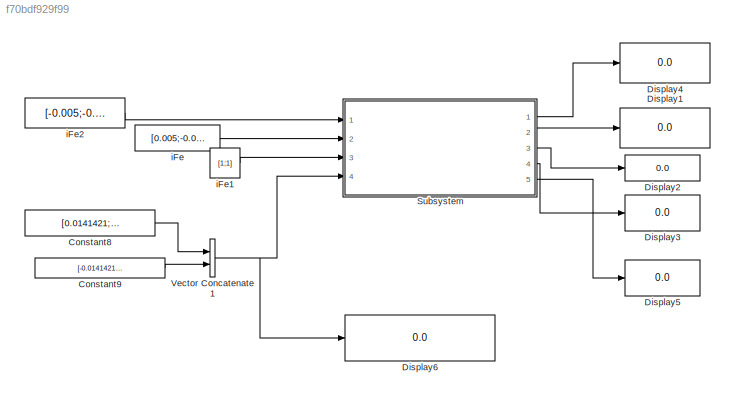
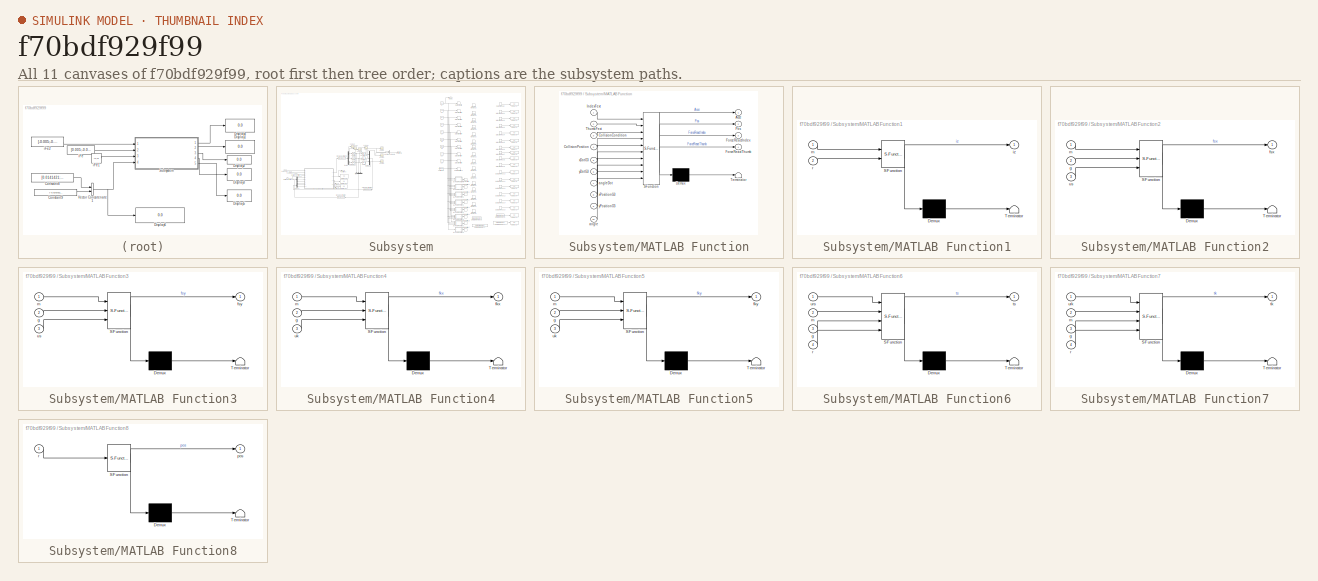
[diagram: thumbnail index - all 11 canvases of the model, root first then tree order]
MODEL slx_f70bdf929f99
KIND model
CONFIG AbsTol = auto
CONFIG FixedStep = auto
CONFIG MaxStep = auto
CONFIG MinStep = auto
CONFIG RelTol = 1e-3
CONFIG SampleTimeConstraint = Unconstrained
CONFIG Solver = ode45
CONFIG SolverMode = Auto
CONFIG SolverName = ode45
CONFIG StartTime = 0.0
CONFIG StopTime = 2
BLOCK [Constant] Constant8
  Value = [0.0141421;0.0141421]
BLOCK [Constant] Constant9
  Value = [-0.0141421;0.0141421]
BLOCK [Display] Display1
  Decimation = 1
  Ports = [1]
BLOCK [Display] Display2
  Decimation = 1
  Ports = [1]
BLOCK [Display] Display3
  Decimation = 1
  Ports = [1]
BLOCK [Display] Display4
  Decimation = 1
  Ports = [1]
BLOCK [Display] Display5
  Decimation = 1
  Ports = [1]
BLOCK [Display] Display6
  Decimation = 1
  Ports = [1]
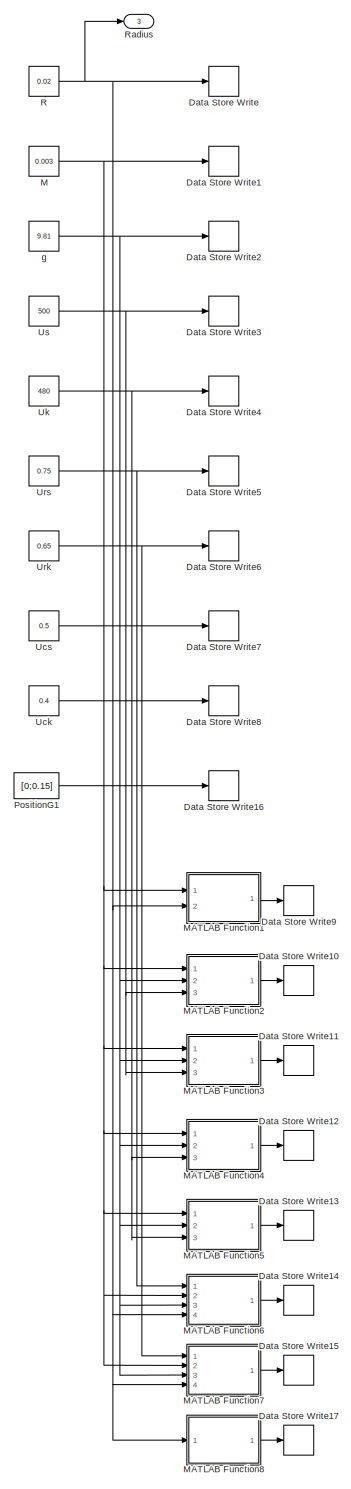
[diagram: Subsystem - part 1/3, right side, full height]
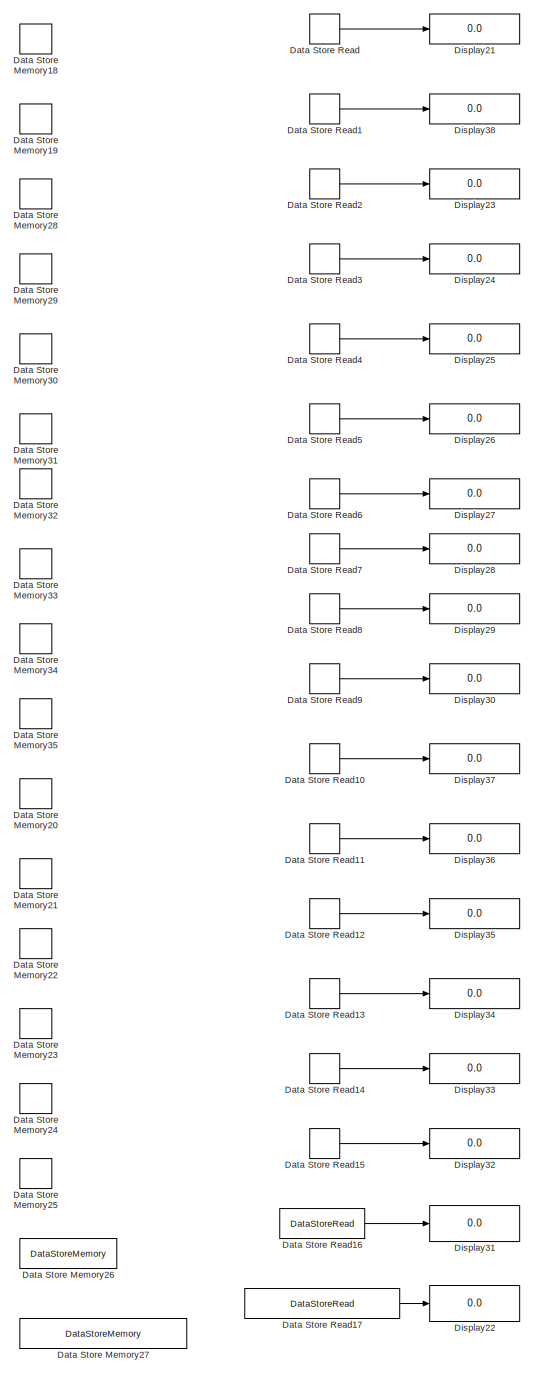
[diagram: Subsystem - part 2/3, right side, full height]
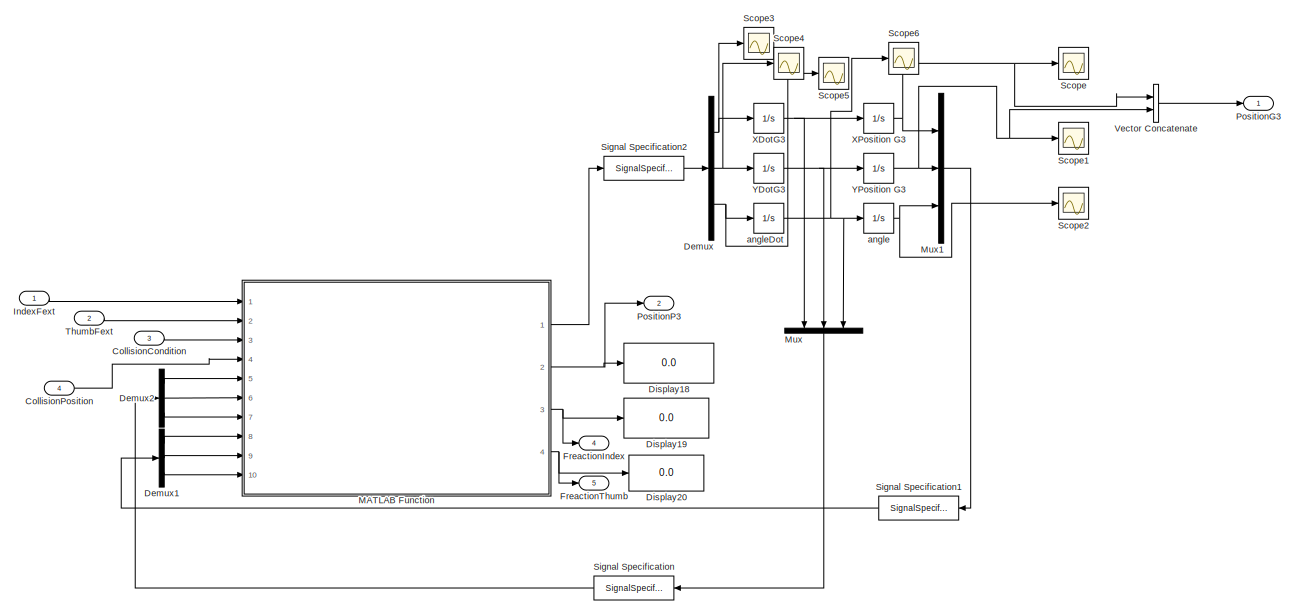
[diagram: Subsystem - part 3/3, middle left region]
BLOCK [SubSystem] Subsystem
  Ports = [4, 5]
  RequestExecContextInheritance = off
BLOCK [Inport] Subsystem/CollisionCondition
  IconDisplay = Port number
  Port = 3
BLOCK [Inport] Subsystem/CollisionPosition
  IconDisplay = Port number
  Port = 4
BLOCK [DataStoreMemory] Subsystem/Data Store Memory18
  DataStoreName = R
  OutDataTypeStr = double
  ReadBeforeWriteMsg = warning
  SignalType = real
  WriteAfterReadMsg = warning
  WriteAfterWriteMsg = warning
BLOCK [DataStoreMemory] Subsystem/Data Store Memory19
  DataStoreName = M
  InitialValue = 0.003
  OutDataTypeStr = double
  ReadBeforeWriteMsg = warning
  SignalType = real
  WriteAfterReadMsg = warning
  WriteAfterWriteMsg = warning
BLOCK [DataStoreMemory] Subsystem/Data Store Memory20
  DataStoreName = F_s_x
  OutDataTypeStr = double
  ReadBeforeWriteMsg = warning
  SignalType = real
  WriteAfterReadMsg = warning
  WriteAfterWriteMsg = warning
BLOCK [DataStoreMemory] Subsystem/Data Store Memory21
  DataStoreName = F_s_y
  OutDataTypeStr = double
  ReadBeforeWriteMsg = warning
  SignalType = real
  WriteAfterReadMsg = warning
  WriteAfterWriteMsg = warning
BLOCK [DataStoreMemory] Subsystem/Data Store Memory22
  DataStoreName = F_k_x
  OutDataTypeStr = double
  ReadBeforeWriteMsg = warning
  SignalType = real
  WriteAfterReadMsg = warning
  WriteAfterWriteMsg = warning
BLOCK [DataStoreMemory] Subsystem/Data Store Memory23
  DataStoreName = F_k_y
  OutDataTypeStr = double
  ReadBeforeWriteMsg = warning
  SignalType = real
  WriteAfterReadMsg = warning
  WriteAfterWriteMsg = warning
BLOCK [DataStoreMemory] Subsystem/Data Store Memory24
  DataStoreName = T_s
  OutDataTypeStr = double
  ReadBeforeWriteMsg = warning
  SignalType = real
  WriteAfterReadMsg = warning
  WriteAfterWriteMsg = warning
BLOCK [DataStoreMemory] Subsystem/Data Store Memory25
  DataStoreName = T_k
  OutDataTypeStr = double
  ReadBeforeWriteMsg = warning
  SignalType = real
  WriteAfterReadMsg = warning
  WriteAfterWriteMsg = warning
BLOCK [DataStoreMemory] Subsystem/Data Store Memory26
  DataStoreName = Position_o_G3
  InitialValue = [0;0]
  OutDataTypeStr = double
  ReadBeforeWriteMsg = warning
  SignalType = real
  WriteAfterReadMsg = warning
  WriteAfterWriteMsg = warning
BLOCK [DataStoreMemory] Subsystem/Data Store Memory27
  DataStoreName = Position_G3_P3_frame_cylinder
  InitialValue = [0;0]
  OutDataTypeStr = double
  ReadBeforeWriteMsg = warning
  SignalType = real
  WriteAfterReadMsg = warning
  WriteAfterWriteMsg = warning
BLOCK [DataStoreMemory] Subsystem/Data Store Memory28
  DataStoreName = g
  InitialValue = 9.81
  OutDataTypeStr = double
  ReadBeforeWriteMsg = warning
  SignalType = real
  WriteAfterReadMsg = warning
  WriteAfterWriteMsg = warning
BLOCK [DataStoreMemory] Subsystem/Data Store Memory29
  DataStoreName = Us
  InitialValue = 0.5
  OutDataTypeStr = double
  ReadBeforeWriteMsg = warning
  SignalType = real
  WriteAfterReadMsg = warning
  WriteAfterWriteMsg = warning
BLOCK [DataStoreMemory] Subsystem/Data Store Memory30
  DataStoreName = Uk
  InitialValue = 0.48
  OutDataTypeStr = double
  ReadBeforeWriteMsg = warning
  SignalType = real
  WriteAfterReadMsg = warning
  WriteAfterWriteMsg = warning
BLOCK [DataStoreMemory] Subsystem/Data Store Memory31
  DataStoreName = Urs
  InitialValue = 0.5
  OutDataTypeStr = double
  ReadBeforeWriteMsg = warning
  SignalType = real
  WriteAfterReadMsg = warning
  WriteAfterWriteMsg = warning
BLOCK [DataStoreMemory] Subsystem/Data Store Memory32
  DataStoreName = Urk
  InitialValue = 0.48
  OutDataTypeStr = double
  ReadBeforeWriteMsg = warning
  SignalType = real
  WriteAfterReadMsg = warning
  WriteAfterWriteMsg = warning
BLOCK [DataStoreMemory] Subsystem/Data Store Memory33
  DataStoreName = Ucs
  InitialValue = 0.5
  OutDataTypeStr = double
  ReadBeforeWriteMsg = warning
  SignalType = real
  WriteAfterReadMsg = warning
  WriteAfterWriteMsg = warning
BLOCK [DataStoreMemory] Subsystem/Data Store Memory34
  DataStoreName = Uck
  InitialValue = 0.4
  OutDataTypeStr = double
  ReadBeforeWriteMsg = warning
  SignalType = real
  WriteAfterReadMsg = warning
  WriteAfterWriteMsg = warning
BLOCK [DataStoreMemory] Subsystem/Data Store Memory35
  DataStoreName = Iz
  OutDataTypeStr = double
  ReadBeforeWriteMsg = warning
  SignalType = real
  WriteAfterReadMsg = warning
  WriteAfterWriteMsg = warning
BLOCK [DataStoreRead] Subsystem/Data Store Read
  DataStoreName = R
  Ports = [0, 1]
BLOCK [DataStoreRead] Subsystem/Data Store Read1
  DataStoreName = M
  Ports = [0, 1]
BLOCK [DataStoreRead] Subsystem/Data Store Read10
  DataStoreName = F_s_x
  Ports = [0, 1]
BLOCK [DataStoreRead] Subsystem/Data Store Read11
  DataStoreName = F_s_y
  Ports = [0, 1]
BLOCK [DataStoreRead] Subsystem/Data Store Read12
  DataStoreName = F_k_x
  Ports = [0, 1]
BLOCK [DataStoreRead] Subsystem/Data Store Read13
  DataStoreName = F_k_y
  Ports = [0, 1]
BLOCK [DataStoreRead] Subsystem/Data Store Read14
  DataStoreName = T_s
  Ports = [0, 1]
BLOCK [DataStoreRead] Subsystem/Data Store Read15
  DataStoreName = T_k
  Ports = [0, 1]
BLOCK [DataStoreRead] Subsystem/Data Store Read16
  DataStoreName = Position_o_G3
  Ports = [0, 1]
BLOCK [DataStoreRead] Subsystem/Data Store Read17
  DataStoreName = Position_G3_P3_frame_cylinder
  Ports = [0, 1]
BLOCK [DataStoreRead] Subsystem/Data Store Read2
  DataStoreName = g
  Ports = [0, 1]
BLOCK [DataStoreRead] Subsystem/Data Store Read3
  DataStoreName = Us
  Ports = [0, 1]
BLOCK [DataStoreRead] Subsystem/Data Store Read4
  DataStoreName = Uk
  Ports = [0, 1]
BLOCK [DataStoreRead] Subsystem/Data Store Read5
  DataStoreName = Urs
  Ports = [0, 1]
BLOCK [DataStoreRead] Subsystem/Data Store Read6
  DataStoreName = Urk
  Ports = [0, 1]
BLOCK [DataStoreRead] Subsystem/Data Store Read7
  DataStoreName = Ucs
  Ports = [0, 1]
BLOCK [DataStoreRead] Subsystem/Data Store Read8
  DataStoreName = Uck
  Ports = [0, 1]
BLOCK [DataStoreRead] Subsystem/Data Store Read9
  DataStoreName = Iz
  Ports = [0, 1]
BLOCK [DataStoreWrite] Subsystem/Data Store Write
  DataStoreName = R
  Ports = [1]
BLOCK [DataStoreWrite] Subsystem/Data Store Write1
  DataStoreName = M
  Ports = [1]
BLOCK [DataStoreWrite] Subsystem/Data Store Write10
  DataStoreName = F_s_x
  Ports = [1]
BLOCK [DataStoreWrite] Subsystem/Data Store Write11
  DataStoreName = F_s_y
  Ports = [1]
BLOCK [DataStoreWrite] Subsystem/Data Store Write12
  DataStoreName = F_k_x
  Ports = [1]
BLOCK [DataStoreWrite] Subsystem/Data Store Write13
  DataStoreName = F_k_y
  Ports = [1]
BLOCK [DataStoreWrite] Subsystem/Data Store Write14
  DataStoreName = T_s
  Ports = [1]
BLOCK [DataStoreWrite] Subsystem/Data Store Write15
  DataStoreName = T_k
  Ports = [1]
BLOCK [DataStoreWrite] Subsystem/Data Store Write16
  DataStoreName = Position_o_G3
  Ports = [1]
BLOCK [DataStoreWrite] Subsystem/Data Store Write17
  DataStoreName = Position_G3_P3_frame_cylinder
  Ports = [1]
BLOCK [DataStoreWrite] Subsystem/Data Store Write2
  DataStoreName = g
  Ports = [1]
BLOCK [DataStoreWrite] Subsystem/Data Store Write3
  DataStoreName = Us
  Ports = [1]
BLOCK [DataStoreWrite] Subsystem/Data Store Write4
  DataStoreName = Uk
  Ports = [1]
BLOCK [DataStoreWrite] Subsystem/Data Store Write5
  DataStoreName = Urs
  Ports = [1]
BLOCK [DataStoreWrite] Subsystem/Data Store Write6
  DataStoreName = Urk
  Ports = [1]
BLOCK [DataStoreWrite] Subsystem/Data Store Write7
  DataStoreName = Ucs
  Ports = [1]
BLOCK [DataStoreWrite] Subsystem/Data Store Write8
  DataStoreName = Uck
  Ports = [1]
BLOCK [DataStoreWrite] Subsystem/Data Store Write9
  DataStoreName = Iz
  Ports = [1]
BLOCK [Demux] Subsystem/Demux
  DisplayOption = bar
  Outputs = 3
  Ports = [1, 3]
BLOCK [Demux] Subsystem/Demux1
  DisplayOption = bar
  Outputs = 3
  Ports = [1, 3]
BLOCK [Demux] Subsystem/Demux2
  DisplayOption = bar
  Outputs = 3
  Ports = [1, 3]
BLOCK [Display] Subsystem/Display18
  Decimation = 1
  Ports = [1]
BLOCK [Display] Subsystem/Display19
  Decimation = 1
  Ports = [1]
BLOCK [Display] Subsystem/Display20
  Decimation = 1
  Ports = [1]
BLOCK [Display] Subsystem/Display21
  Decimation = 1
  Ports = [1]
BLOCK [Display] Subsystem/Display22
  Decimation = 1
  Ports = [1]
BLOCK [Display] Subsystem/Display23
  Decimation = 1
  Ports = [1]
BLOCK [Display] Subsystem/Display24
  Decimation = 1
  Ports = [1]
BLOCK [Display] Subsystem/Display25
  Decimation = 1
  Ports = [1]
BLOCK [Display] Subsystem/Display26
  Decimation = 1
  Ports = [1]
BLOCK [Display] Subsystem/Display27
  Decimation = 1
  Ports = [1]
BLOCK [Display] Subsystem/Display28
  Decimation = 1
  Ports = [1]
BLOCK [Display] Subsystem/Display29
  Decimation = 1
  Ports = [1]
BLOCK [Display] Subsystem/Display30
  Decimation = 1
  Ports = [1]
BLOCK [Display] Subsystem/Display31
  Decimation = 1
  Ports = [1]
BLOCK [Display] Subsystem/Display32
  Decimation = 1
  Ports = [1]
BLOCK [Display] Subsystem/Display33
  Decimation = 1
  Ports = [1]
BLOCK [Display] Subsystem/Display34
  Decimation = 1
  Ports = [1]
BLOCK [Display] Subsystem/Display35
  Decimation = 1
  Ports = [1]
BLOCK [Display] Subsystem/Display36
  Decimation = 1
  Ports = [1]
BLOCK [Display] Subsystem/Display37
  Decimation = 1
  Ports = [1]
BLOCK [Display] Subsystem/Display38
  Decimation = 1
  Ports = [1]
BLOCK [Outport] Subsystem/FreactionIndex
  IconDisplay = Port number
  Port = 4
BLOCK [Outport] Subsystem/FreactionThumb
  IconDisplay = Port number
  Port = 5
BLOCK [Inport] Subsystem/IndexFext
  IconDisplay = Port number
BLOCK [Constant] Subsystem/M
  Value = 0.003
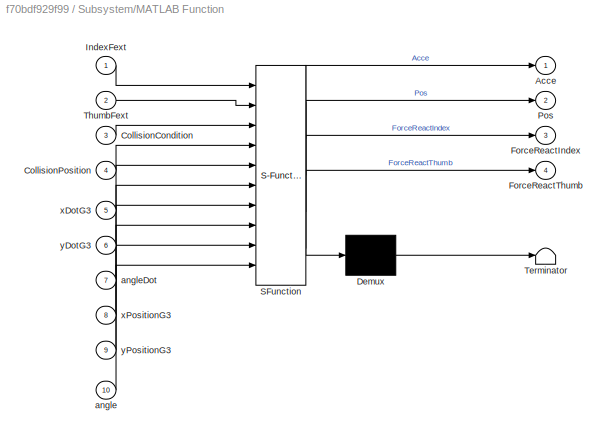
BLOCK [SubSystem] Subsystem/MATLAB Function
  ErrorFcn = Stateflow.Translate.translate
  PermitHierarchicalResolution = ExplicitOnly
  Ports = [10, 4]
  RequestExecContextInheritance = off
  SFBlockType = MATLAB Function
  TreatAsAtomicUnit = on
BLOCK [Demux] Subsystem/MATLAB Function/ Demux 
  Outputs = 1
  Ports = [1, 1]
BLOCK [S-Function] Subsystem/MATLAB Function/ SFunction 
  EnableBusSupport = on
  FunctionName = sf_sfun
  PortCounts = [10 5]
  Ports = [10, 5]
  Tag = Stateflow S-Function CylinderTest 1
BLOCK [Terminator] Subsystem/MATLAB Function/ Terminator 
BLOCK [Outport] Subsystem/MATLAB Function/Acce
  IconDisplay = Port number
BLOCK [Inport] Subsystem/MATLAB Function/CollisionCondition
  IconDisplay = Port number
  Port = 3
BLOCK [Inport] Subsystem/MATLAB Function/CollisionPosition
  IconDisplay = Port number
  Port = 4
BLOCK [Outport] Subsystem/MATLAB Function/ForceReactIndex
  IconDisplay = Port number
  Port = 3
BLOCK [Outport] Subsystem/MATLAB Function/ForceReactThumb
  IconDisplay = Port number
  Port = 4
BLOCK [Inport] Subsystem/MATLAB Function/IndexFext
  IconDisplay = Port number
BLOCK [Outport] Subsystem/MATLAB Function/Pos
  IconDisplay = Port number
  Port = 2
BLOCK [Inport] Subsystem/MATLAB Function/ThumbFext
  IconDisplay = Port number
  Port = 2
BLOCK [Inport] Subsystem/MATLAB Function/angle
  IconDisplay = Port number
  Port = 10
BLOCK [Inport] Subsystem/MATLAB Function/angleDot
  IconDisplay = Port number
  Port = 7
BLOCK [Inport] Subsystem/MATLAB Function/xDotG3
  IconDisplay = Port number
  Port = 5
BLOCK [Inport] Subsystem/MATLAB Function/xPositionG3
  IconDisplay = Port number
  Port = 8
BLOCK [Inport] Subsystem/MATLAB Function/yDotG3
  IconDisplay = Port number
  Port = 6
BLOCK [Inport] Subsystem/MATLAB Function/yPositionG3
  IconDisplay = Port number
  Port = 9
BLOCK [SubSystem] Subsystem/MATLAB Function1
  ErrorFcn = Stateflow.Translate.translate
  PermitHierarchicalResolution = ExplicitOnly
  Ports = [2, 1]
  RequestExecContextInheritance = off
  SFBlockType = MATLAB Function
  TreatAsAtomicUnit = on
BLOCK [Demux] Subsystem/MATLAB Function1/ Demux 
  Outputs = 1
  Ports = [1, 1]
BLOCK [S-Function] Subsystem/MATLAB Function1/ SFunction 
  EnableBusSupport = on
  FunctionName = sf_sfun
  PortCounts = [2 2]
  Ports = [2, 2]
  Tag = Stateflow S-Function CylinderTest 3
BLOCK [Terminator] Subsystem/MATLAB Function1/ Terminator 
BLOCK [Outport] Subsystem/MATLAB Function1/iz
  IconDisplay = Port number
BLOCK [Inport] Subsystem/MATLAB Function1/m
  IconDisplay = Port number
BLOCK [Inport] Subsystem/MATLAB Function1/r
  IconDisplay = Port number
  Port = 2
BLOCK [SubSystem] Subsystem/MATLAB Function2
  ErrorFcn = Stateflow.Translate.translate
  PermitHierarchicalResolution = ExplicitOnly
  Ports = [3, 1]
  RequestExecContextInheritance = off
  SFBlockType = MATLAB Function
  TreatAsAtomicUnit = on
BLOCK [Demux] Subsystem/MATLAB Function2/ Demux 
  Outputs = 1
  Ports = [1, 1]
BLOCK [S-Function] Subsystem/MATLAB Function2/ SFunction 
  EnableBusSupport = on
  FunctionName = sf_sfun
  PortCounts = [3 2]
  Ports = [3, 2]
  Tag = Stateflow S-Function CylinderTest 4
BLOCK [Terminator] Subsystem/MATLAB Function2/ Terminator 
BLOCK [Outport] Subsystem/MATLAB Function2/fsx
  IconDisplay = Port number
BLOCK [Inport] Subsystem/MATLAB Function2/g
  IconDisplay = Port number
  Port = 2
BLOCK [Inport] Subsystem/MATLAB Function2/m
  IconDisplay = Port number
BLOCK [Inport] Subsystem/MATLAB Function2/us
  IconDisplay = Port number
  Port = 3
BLOCK [SubSystem] Subsystem/MATLAB Function3
  ErrorFcn = Stateflow.Translate.translate
  PermitHierarchicalResolution = ExplicitOnly
  Ports = [3, 1]
  RequestExecContextInheritance = off
  SFBlockType = MATLAB Function
  TreatAsAtomicUnit = on
BLOCK [Demux] Subsystem/MATLAB Function3/ Demux 
  Outputs = 1
  Ports = [1, 1]
BLOCK [S-Function] Subsystem/MATLAB Function3/ SFunction 
  EnableBusSupport = on
  FunctionName = sf_sfun
  PortCounts = [3 2]
  Ports = [3, 2]
  Tag = Stateflow S-Function CylinderTest 5
BLOCK [Terminator] Subsystem/MATLAB Function3/ Terminator 
BLOCK [Outport] Subsystem/MATLAB Function3/fsy
  IconDisplay = Port number
BLOCK [Inport] Subsystem/MATLAB Function3/g
  IconDisplay = Port number
  Port = 2
BLOCK [Inport] Subsystem/MATLAB Function3/m
  IconDisplay = Port number
BLOCK [Inport] Subsystem/MATLAB Function3/us
  IconDisplay = Port number
  Port = 3
BLOCK [SubSystem] Subsystem/MATLAB Function4
  ErrorFcn = Stateflow.Translate.translate
  PermitHierarchicalResolution = ExplicitOnly
  Ports = [3, 1]
  RequestExecContextInheritance = off
  SFBlockType = MATLAB Function
  TreatAsAtomicUnit = on
BLOCK [Demux] Subsystem/MATLAB Function4/ Demux 
  Outputs = 1
  Ports = [1, 1]
BLOCK [S-Function] Subsystem/MATLAB Function4/ SFunction 
  EnableBusSupport = on
  FunctionName = sf_sfun
  PortCounts = [3 2]
  Ports = [3, 2]
  Tag = Stateflow S-Function CylinderTest 6
BLOCK [Terminator] Subsystem/MATLAB Function4/ Terminator 
BLOCK [Outport] Subsystem/MATLAB Function4/fkx
  IconDisplay = Port number
BLOCK [Inport] Subsystem/MATLAB Function4/g
  IconDisplay = Port number
  Port = 2
BLOCK [Inport] Subsystem/MATLAB Function4/m
  IconDisplay = Port number
BLOCK [Inport] Subsystem/MATLAB Function4/uk
  IconDisplay = Port number
  Port = 3
BLOCK [SubSystem] Subsystem/MATLAB Function5
  ErrorFcn = Stateflow.Translate.translate
  PermitHierarchicalResolution = ExplicitOnly
  Ports = [3, 1]
  RequestExecContextInheritance = off
  SFBlockType = MATLAB Function
  TreatAsAtomicUnit = on
BLOCK [Demux] Subsystem/MATLAB Function5/ Demux 
  Outputs = 1
  Ports = [1, 1]
BLOCK [S-Function] Subsystem/MATLAB Function5/ SFunction 
  EnableBusSupport = on
  FunctionName = sf_sfun
  PortCounts = [3 2]
  Ports = [3, 2]
  Tag = Stateflow S-Function CylinderTest 7
BLOCK [Terminator] Subsystem/MATLAB Function5/ Terminator 
BLOCK [Outport] Subsystem/MATLAB Function5/fky
  IconDisplay = Port number
BLOCK [Inport] Subsystem/MATLAB Function5/g
  IconDisplay = Port number
  Port = 2
BLOCK [Inport] Subsystem/MATLAB Function5/m
  IconDisplay = Port number
BLOCK [Inport] Subsystem/MATLAB Function5/uk
  IconDisplay = Port number
  Port = 3
BLOCK [SubSystem] Subsystem/MATLAB Function6
  ErrorFcn = Stateflow.Translate.translate
  PermitHierarchicalResolution = ExplicitOnly
  Ports = [4, 1]
  RequestExecContextInheritance = off
  SFBlockType = MATLAB Function
  TreatAsAtomicUnit = on
BLOCK [Demux] Subsystem/MATLAB Function6/ Demux 
  Outputs = 1
  Ports = [1, 1]
BLOCK [S-Function] Subsystem/MATLAB Function6/ SFunction 
  EnableBusSupport = on
  FunctionName = sf_sfun
  PortCounts = [4 2]
  Ports = [4, 2]
  Tag = Stateflow S-Function CylinderTest 8
BLOCK [Terminator] Subsystem/MATLAB Function6/ Terminator 
BLOCK [Inport] Subsystem/MATLAB Function6/g
  IconDisplay = Port number
  Port = 3
BLOCK [Inport] Subsystem/MATLAB Function6/m
  IconDisplay = Port number
  Port = 2
BLOCK [Inport] Subsystem/MATLAB Function6/r
  IconDisplay = Port number
  Port = 4
BLOCK [Outport] Subsystem/MATLAB Function6/ts
  IconDisplay = Port number
BLOCK [Inport] Subsystem/MATLAB Function6/urs
  IconDisplay = Port number
BLOCK [SubSystem] Subsystem/MATLAB Function7
  ErrorFcn = Stateflow.Translate.translate
  PermitHierarchicalResolution = ExplicitOnly
  Ports = [4, 1]
  RequestExecContextInheritance = off
  SFBlockType = MATLAB Function
  TreatAsAtomicUnit = on
BLOCK [Demux] Subsystem/MATLAB Function7/ Demux 
  Outputs = 1
  Ports = [1, 1]
BLOCK [S-Function] Subsystem/MATLAB Function7/ SFunction 
  EnableBusSupport = on
  FunctionName = sf_sfun
  PortCounts = [4 2]
  Ports = [4, 2]
  Tag = Stateflow S-Function CylinderTest 10
BLOCK [Terminator] Subsystem/MATLAB Function7/ Terminator 
BLOCK [Inport] Subsystem/MATLAB Function7/g
  IconDisplay = Port number
  Port = 3
BLOCK [Inport] Subsystem/MATLAB Function7/m
  IconDisplay = Port number
  Port = 2
BLOCK [Inport] Subsystem/MATLAB Function7/r
  IconDisplay = Port number
  Port = 4
BLOCK [Outport] Subsystem/MATLAB Function7/tk
  IconDisplay = Port number
BLOCK [Inport] Subsystem/MATLAB Function7/urk
  IconDisplay = Port number
BLOCK [SubSystem] Subsystem/MATLAB Function8
  ErrorFcn = Stateflow.Translate.translate
  PermitHierarchicalResolution = ExplicitOnly
  Ports = [1, 1]
  RequestExecContextInheritance = off
  SFBlockType = MATLAB Function
  TreatAsAtomicUnit = on
BLOCK [Demux] Subsystem/MATLAB Function8/ Demux 
  Outputs = 1
  Ports = [1, 1]
BLOCK [S-Function] Subsystem/MATLAB Function8/ SFunction 
  EnableBusSupport = on
  FunctionName = sf_sfun
  PortCounts = [1 2]
  Ports = [1, 2]
  Tag = Stateflow S-Function CylinderTest 18
BLOCK [Terminator] Subsystem/MATLAB Function8/ Terminator 
BLOCK [Outport] Subsystem/MATLAB Function8/pos
  IconDisplay = Port number
BLOCK [Inport] Subsystem/MATLAB Function8/r
  IconDisplay = Port number
BLOCK [Mux] Subsystem/Mux
  DisplayOption = bar
  Inputs = 3
  Ports = [3, 1]
BLOCK [Mux] Subsystem/Mux1
  DisplayOption = bar
  Inputs = 3
  Ports = [3, 1]
BLOCK [Constant] Subsystem/PositionG1
  Value = [0;0.15]
BLOCK [Outport] Subsystem/PositionG3
  IconDisplay = Port number
BLOCK [Outport] Subsystem/PositionP3
  IconDisplay = Port number
  Port = 2
BLOCK [Constant] Subsystem/R
  Value = 0.02
BLOCK [Outport] Subsystem/Radius
  IconDisplay = Port number
  Port = 3
BLOCK [Scope] Subsystem/Scope
  Floating = off
  NumInputPorts = 1
  Ports = [1]
  SaveName = ScopeData6
BLOCK [Scope] Subsystem/Scope1
  Floating = off
  NumInputPorts = 1
  Ports = [1]
  SaveName = ScopeData7
BLOCK [Scope] Subsystem/Scope2
  Floating = off
  NumInputPorts = 1
  Ports = [1]
  SaveName = ScopeData8
BLOCK [Scope] Subsystem/Scope3
  Floating = off
  NumInputPorts = 1
  Ports = [1]
  SaveName = ScopeData9
BLOCK [Scope] Subsystem/Scope4
  Floating = off
  NumInputPorts = 1
  Ports = [1]
  SaveName = ScopeData10
BLOCK [Scope] Subsystem/Scope5
  Floating = off
  NumInputPorts = 1
  Ports = [1]
  SaveName = ScopeData11
BLOCK [Scope] Subsystem/Scope6
  Floating = off
  NumInputPorts = 1
  Ports = [1]
  SaveName = ScopeData3
BLOCK [SignalSpecification] Subsystem/Signal Specification
  Dimensions = 3
BLOCK [SignalSpecification] Subsystem/Signal Specification1
  Dimensions = 3
BLOCK [SignalSpecification] Subsystem/Signal Specification2
  Dimensions = 3
BLOCK [Inport] Subsystem/ThumbFext
  IconDisplay = Port number
  Port = 2
BLOCK [Constant] Subsystem/Uck
  Value = 0.4
BLOCK [Constant] Subsystem/Ucs
  Value = 0.5
BLOCK [Constant] Subsystem/Uk
  Value = 480
BLOCK [Constant] Subsystem/Urk
  Value = 0.65
BLOCK [Constant] Subsystem/Urs
  Value = 0.75
BLOCK [Constant] Subsystem/Us
  Value = 500
BLOCK [Concatenate] Subsystem/Vector Concatenate
  Ports = [2, 1]
BLOCK [Integrator] Subsystem/XDotG3
  Ports = [1, 1]
BLOCK [Integrator] Subsystem/XPosition G3
  Ports = [1, 1]
BLOCK [Integrator] Subsystem/YDotG3
  Ports = [1, 1]
BLOCK [Integrator] Subsystem/YPosition G3
  InitialCondition = 0.15
  Ports = [1, 1]
BLOCK [Integrator] Subsystem/angle
  Ports = [1, 1]
BLOCK [Integrator] Subsystem/angleDot
  Ports = [1, 1]
BLOCK [Constant] Subsystem/g
  Value = 9.81
BLOCK [Concatenate] Vector Concatenate1
  ConcatenateDimension = 2
  Mode = Multidimensional array
  Ports = [2, 1]
BLOCK [Constant] iFe
  Value = [0.005;-0.001]
BLOCK [Constant] iFe1
  Value = [1;1]
BLOCK [Constant] iFe2
  Value = [-0.005;-0.001]
LINE Constant8:1 -> Vector Concatenate1:1
LINE Constant9:1 -> Vector Concatenate1:2
LINE Subsystem/CollisionCondition:1 -> Subsystem/MATLAB Function:3
LINE Subsystem/CollisionPosition:1 -> Subsystem/MATLAB Function:4
LINE Subsystem/Data Store Read10:1 -> Subsystem/Display37:1
LINE Subsystem/Data Store Read11:1 -> Subsystem/Display36:1
LINE Subsystem/Data Store Read12:1 -> Subsystem/Display35:1
LINE Subsystem/Data Store Read13:1 -> Subsystem/Display34:1
LINE Subsystem/Data Store Read14:1 -> Subsystem/Display33:1
LINE Subsystem/Data Store Read15:1 -> Subsystem/Display32:1
LINE Subsystem/Data Store Read16:1 -> Subsystem/Display31:1
LINE Subsystem/Data Store Read17:1 -> Subsystem/Display22:1
LINE Subsystem/Data Store Read1:1 -> Subsystem/Display38:1
LINE Subsystem/Data Store Read2:1 -> Subsystem/Display23:1
LINE Subsystem/Data Store Read3:1 -> Subsystem/Display24:1
LINE Subsystem/Data Store Read4:1 -> Subsystem/Display25:1
LINE Subsystem/Data Store Read5:1 -> Subsystem/Display26:1
LINE Subsystem/Data Store Read6:1 -> Subsystem/Display27:1
LINE Subsystem/Data Store Read7:1 -> Subsystem/Display28:1
LINE Subsystem/Data Store Read8:1 -> Subsystem/Display29:1
LINE Subsystem/Data Store Read9:1 -> Subsystem/Display30:1
LINE Subsystem/Data Store Read:1 -> Subsystem/Display21:1
LINE Subsystem/Demux1:1 -> Subsystem/MATLAB Function:8
LINE Subsystem/Demux1:2 -> Subsystem/MATLAB Function:9
LINE Subsystem/Demux1:3 -> Subsystem/MATLAB Function:10
LINE Subsystem/Demux2:1 -> Subsystem/MATLAB Function:5
LINE Subsystem/Demux2:2 -> Subsystem/MATLAB Function:6
LINE Subsystem/Demux2:3 -> Subsystem/MATLAB Function:7
NET Subsystem/Demux:1 -> Subsystem/Scope3:1, Subsystem/XDotG3:1
NET Subsystem/Demux:2 -> Subsystem/Scope4:1, Subsystem/YDotG3:1
NET Subsystem/Demux:3 -> Subsystem/Scope5:1, Subsystem/angleDot:1
LINE Subsystem/IndexFext:1 -> Subsystem/MATLAB Function:1
NET Subsystem/M:1 -> Subsystem/Data Store Write1:1, Subsystem/MATLAB Function1:1, Subsystem/MATLAB Function2:1, Subsystem/MATLAB Function3:1, Subsystem/MATLAB Function4:1, Subsystem/MATLAB Function5:1, Subsystem/MATLAB Function6:2, Subsystem/MATLAB Function7:2
LINE Subsystem/MATLAB Function1:1 -> Subsystem/Data Store Write9:1
LINE Subsystem/MATLAB Function2:1 -> Subsystem/Data Store Write10:1
LINE Subsystem/MATLAB Function3:1 -> Subsystem/Data Store Write11:1
LINE Subsystem/MATLAB Function4:1 -> Subsystem/Data Store Write12:1
LINE Subsystem/MATLAB Function5:1 -> Subsystem/Data Store Write13:1
LINE Subsystem/MATLAB Function6:1 -> Subsystem/Data Store Write14:1
LINE Subsystem/MATLAB Function7:1 -> Subsystem/Data Store Write15:1
LINE Subsystem/MATLAB Function8:1 -> Subsystem/Data Store Write17:1
LINE Subsystem/MATLAB Function:1 -> Subsystem/Signal Specification2:1
NET Subsystem/MATLAB Function:2 -> Subsystem/Display18:1, Subsystem/PositionP3:1
NET Subsystem/MATLAB Function:3 -> Subsystem/Display19:1, Subsystem/FreactionIndex:1
NET Subsystem/MATLAB Function:4 -> Subsystem/Display20:1, Subsystem/FreactionThumb:1
LINE Subsystem/Mux1:1 -> Subsystem/Signal Specification1:1
LINE Subsystem/Mux:1 -> Subsystem/Signal Specification:1
LINE Subsystem/PositionG1:1 -> Subsystem/Data Store Write16:1
NET Subsystem/R:1 -> Subsystem/Data Store Write:1, Subsystem/MATLAB Function1:2, Subsystem/MATLAB Function6:4, Subsystem/MATLAB Function7:4, Subsystem/MATLAB Function8:1, Subsystem/Radius:1
LINE Subsystem/Signal Specification1:1 -> Subsystem/Demux1:1
LINE Subsystem/Signal Specification2:1 -> Subsystem/Demux:1
LINE Subsystem/Signal Specification:1 -> Subsystem/Demux2:1
LINE Subsystem/ThumbFext:1 -> Subsystem/MATLAB Function:2
LINE Subsystem/Uck:1 -> Subsystem/Data Store Write8:1
LINE Subsystem/Ucs:1 -> Subsystem/Data Store Write7:1
NET Subsystem/Uk:1 -> Subsystem/Data Store Write4:1, Subsystem/MATLAB Function4:3, Subsystem/MATLAB Function5:3
NET Subsystem/Urk:1 -> Subsystem/Data Store Write6:1, Subsystem/MATLAB Function7:1
NET Subsystem/Urs:1 -> Subsystem/Data Store Write5:1, Subsystem/MATLAB Function6:1
NET Subsystem/Us:1 -> Subsystem/Data Store Write3:1, Subsystem/MATLAB Function2:3, Subsystem/MATLAB Function3:3
LINE Subsystem/Vector Concatenate:1 -> Subsystem/PositionG3:1
NET Subsystem/XDotG3:1 -> Subsystem/Mux:1, Subsystem/XPosition G3:1
NET Subsystem/XPosition G3:1 -> Subsystem/Mux1:1, Subsystem/Scope:1, Subsystem/Vector Concatenate:1
NET Subsystem/YDotG3:1 -> Subsystem/Mux:2, Subsystem/YPosition G3:1
NET Subsystem/YPosition G3:1 -> Subsystem/Mux1:2, Subsystem/Scope1:1, Subsystem/Vector Concatenate:2
NET Subsystem/angle:1 -> Subsystem/Mux1:3, Subsystem/Scope2:1
NET Subsystem/angleDot:1 -> Subsystem/Mux:3, Subsystem/Scope6:1, Subsystem/angle:1
NET Subsystem/g:1 -> Subsystem/Data Store Write2:1, Subsystem/MATLAB Function2:2, Subsystem/MATLAB Function3:2, Subsystem/MATLAB Function4:2, Subsystem/MATLAB Function5:2, Subsystem/MATLAB Function6:3, Subsystem/MATLAB Function7:3
LINE Subsystem:1 -> Display4:1
LINE Subsystem:2 -> Display1:1
LINE Subsystem:3 -> Display2:1
LINE Subsystem:4 -> Display3:1
LINE Subsystem:5 -> Display5:1
NET Vector Concatenate1:1 -> Display6:1, Subsystem:4
LINE iFe1:1 -> Subsystem:3
LINE iFe2:1 -> Subsystem:1
LINE iFe:1 -> Subsystem:2
note: NET lines group one-source signal fan-out (src -> all destinations, sorted); 1:1 wires keep LINE
CHART Subsystem/MATLAB Function states=1 transitions=1
  STATE_LABEL 'eML_blk_kernel()'
  STATE_LABEL 'SCRIPT:\nfunction [Acce,Pos,ForceReactIndex,ForceReactThumb] = CylinderMain(IndexFext,ThumbFext,CollisionCondition,...\n                                                                   CollisionPosition,xDotG3,yDotG3,angleDot...\n                                                                   ,xPositionG3,yPositionG3,angle)\n%   global variables parameters\n    global R M g Us Uk Urs Urk Ucs Uck I...<+3608ch>'
CHART Subsystem/MATLAB Function1 states=1 transitions=1
  STATE_LABEL 'eML_blk_kernel()'
  STATE_LABEL 'SCRIPT:\nfunction iz = fcn(m,r)\n%#codegen\n    iz=(m*r^2)/2;\nend'
CHART Subsystem/MATLAB Function2 states=1 transitions=1
  STATE_LABEL 'eML_blk_kernel()'
  STATE_LABEL 'SCRIPT:\nfunction fsx = fcn(m,g,us)\n%#codegen\n    fsx=m*g*us;\nend'
CHART Subsystem/MATLAB Function3 states=1 transitions=1
  STATE_LABEL 'eML_blk_kernel()'
  STATE_LABEL 'SCRIPT:\nfunction fsy = fcn(m,g,us)\n%#codegen\n    fsy=m*g*us;\nend'
CHART Subsystem/MATLAB Function4 states=1 transitions=1
  STATE_LABEL 'eML_blk_kernel()'
  STATE_LABEL 'SCRIPT:\nfunction fkx = fcn(m,g,uk)\n%#codegen\n    fkx=m*g*uk;\nend'
CHART Subsystem/MATLAB Function5 states=1 transitions=1
  STATE_LABEL 'eML_blk_kernel()'
  STATE_LABEL 'SCRIPT:\nfunction fky = fcn(m,g,uk)\n%#codegen\n    fky=m*g*uk;\nend'
CHART Subsystem/MATLAB Function6 states=1 transitions=1
  STATE_LABEL 'eML_blk_kernel()'
  STATE_LABEL 'SCRIPT:\nfunction ts = fcn(urs,m,g,r)\n%#codegen\n    ts=(2/3)*urs*r*m*g;\nend'
CHART Subsystem/MATLAB Function7 states=1 transitions=1
  STATE_LABEL 'eML_blk_kernel()'
  STATE_LABEL 'SCRIPT:\nfunction tk = fcn(urk,m,g,r)\n%#codegen\n    tk=(2/3)*urk*r*m*g;\nend'
CHART Subsystem/MATLAB Function8 states=1 transitions=1
  STATE_LABEL 'eML_blk_kernel()'
  STATE_LABEL 'SCRIPT:\nfunction pos = fcn(r)\n%#codegen\n    pos=[0;r];\nend'
